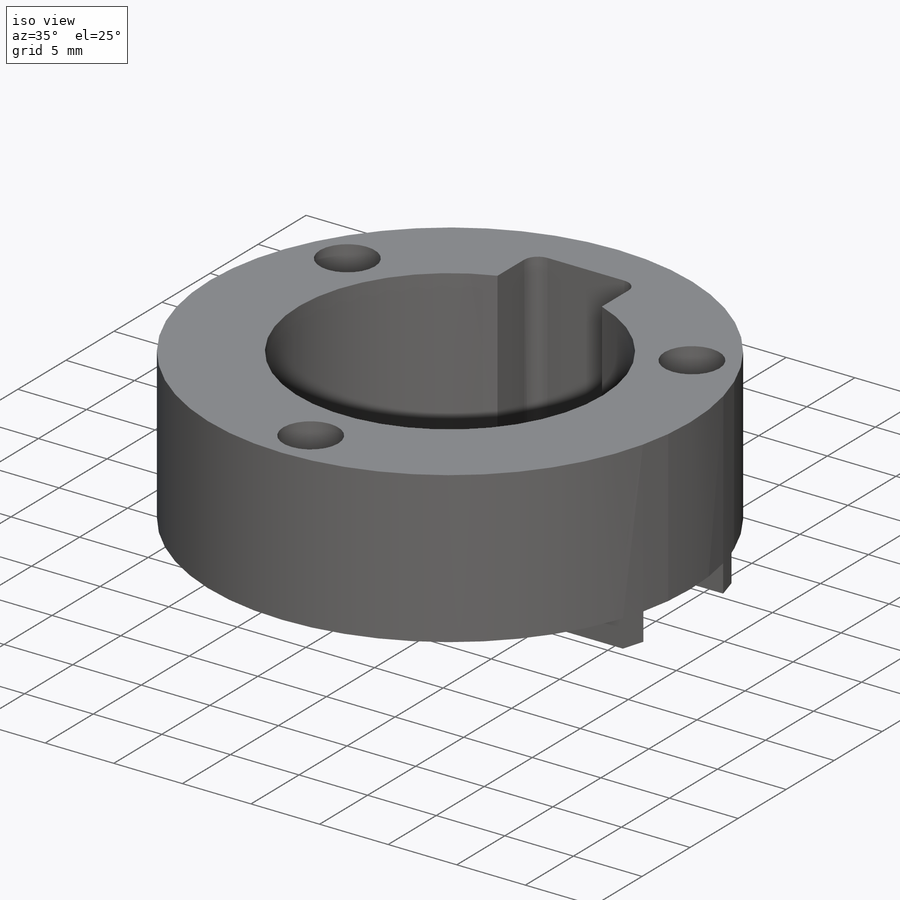
[diagram: iso view]
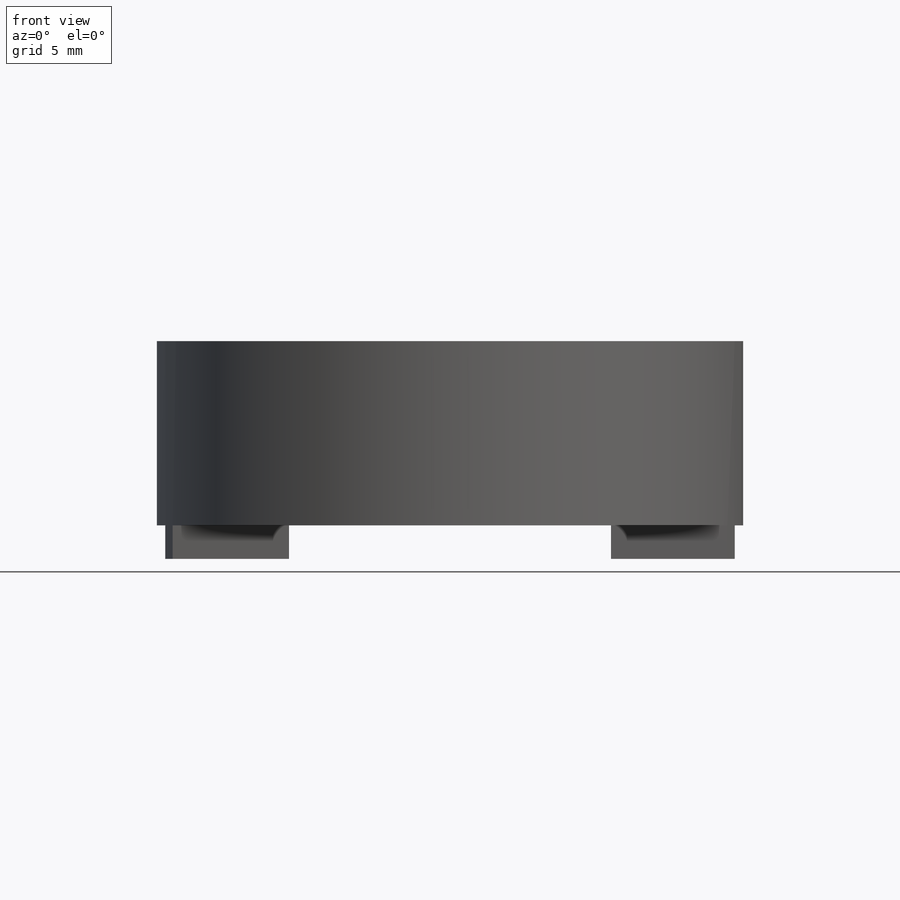
[diagram: front view]
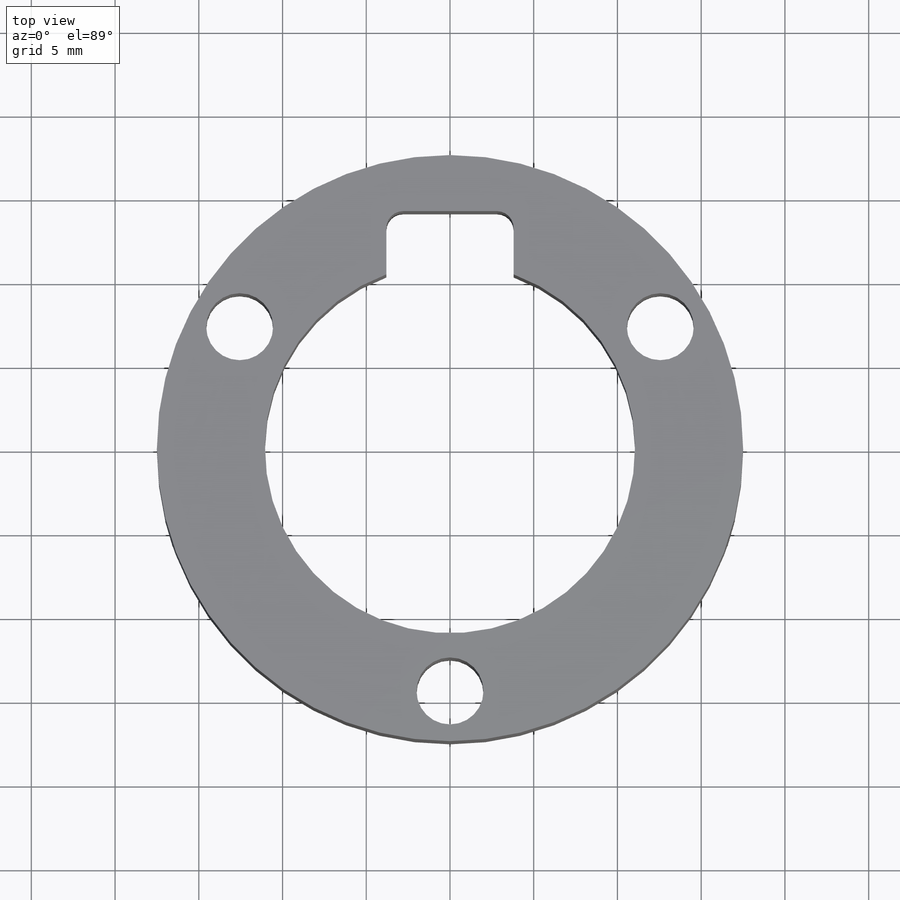
[diagram: top view]
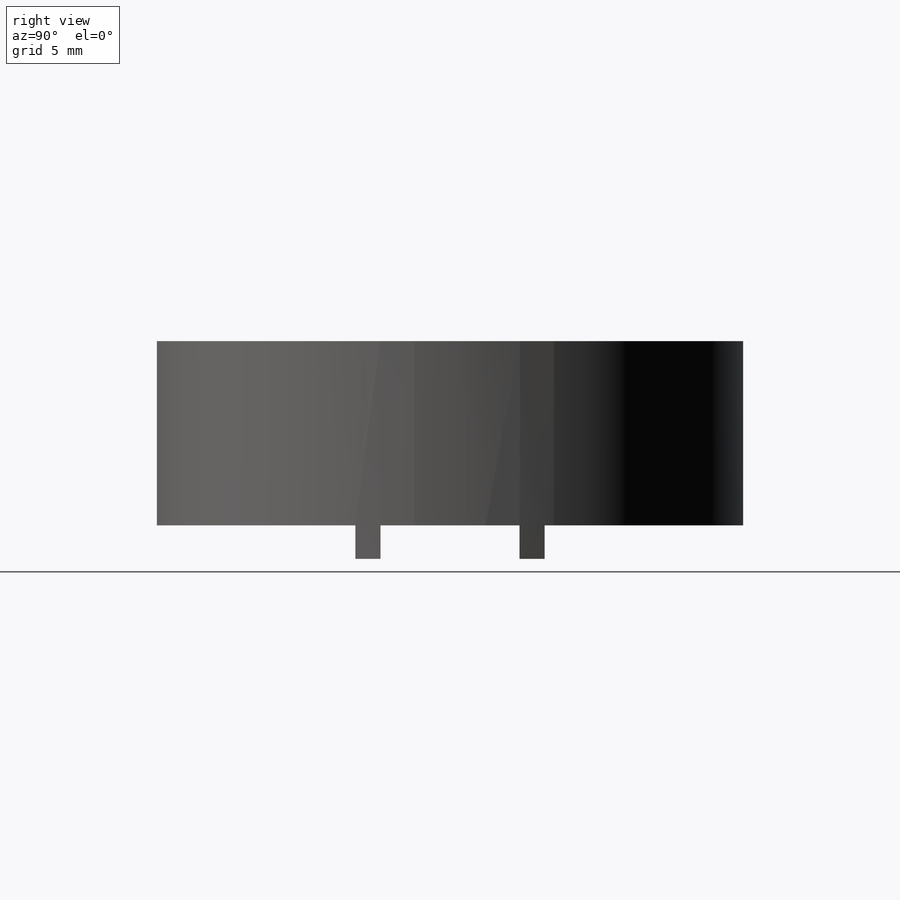
[diagram: right view]
SOLIDWORKS PART (.sldprt)
format: sldprt  version: not decoded by parser v0  size: 289,280 bytes
history: native  units: mm
features: sketch x5, plane x3, extrude x3, cut_extrude x2, material x1 (+9 scaffold rows collapsed)
feature tree (23):
  scaffold x9  (default folders/planes/origin — collapsed)
  material  "Material <sin especificar>"
  plane  "Alzado"
  plane  "Planta"
  plane  "Vista lateral"
  sketch  "Croquis1"  dims[c1.D1=22.3mm c1.D4=1.0mm c1.D5=35.0mm c2.D4=1.0mm c2.D2=7.5mm c2.D3=8.0mm c2.D6=4.0mm c3.D3=4.0mm c3.D2=7.6mm c4.D3=3.0mm c4.D6=0.0mm c4.D7=0.0mm]
  extrude  "Saliente-Extruir1"  Depth=11mm
  sketch  "Croquis4"  dims[c1.D3=4.0mm c1.D4=4.0mm c1.D5=4.0mm c1.D6=29.0mm c2.D3=4.0mm c2.D4=4.0mm c2.D2=~21.588981mm c3.D2=60.0deg c3.D7=~25.206849mm c4.D2=~22.515924mm c5.D2=60.0deg c5.D1=3.0mm]
  cut_extrude  "Cortar-Extruir2"  [1 undecoded]
  sketch  "Croquis6"  dims[c1.D1=4.0mm c1.D2=22.3mm c2.D1=4.25mm c2.D2=4.25mm c2.D3=4.0mm]
  cut_extrude  "Cortar-Extruir3"  Depth=4mm
  sketch  "Croquis13"  dims[D3=35.0mm D1=4.15mm D2=1.5mm]
  extrude  "Saliente-Extruir3"  Depth=2mm
  sketch  "Croquis11"  dims[D1=0.1mm]
  extrude  "Saliente-Extruir4"  [1 undecoded]
decode coverage: 8 of 10 modeling features carry decoded parameters
note: ~ marks probable driven/reference dimensions
note: 2 parameter values undecoded
note: suppression state not decoded; provenance and decode notes live in map.json
